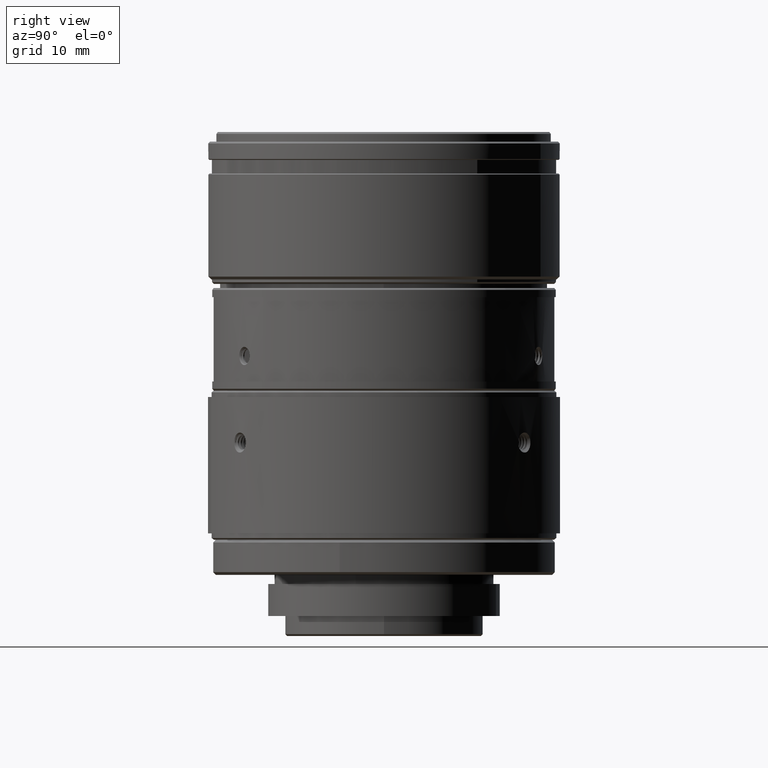
[diagram: clean part render]
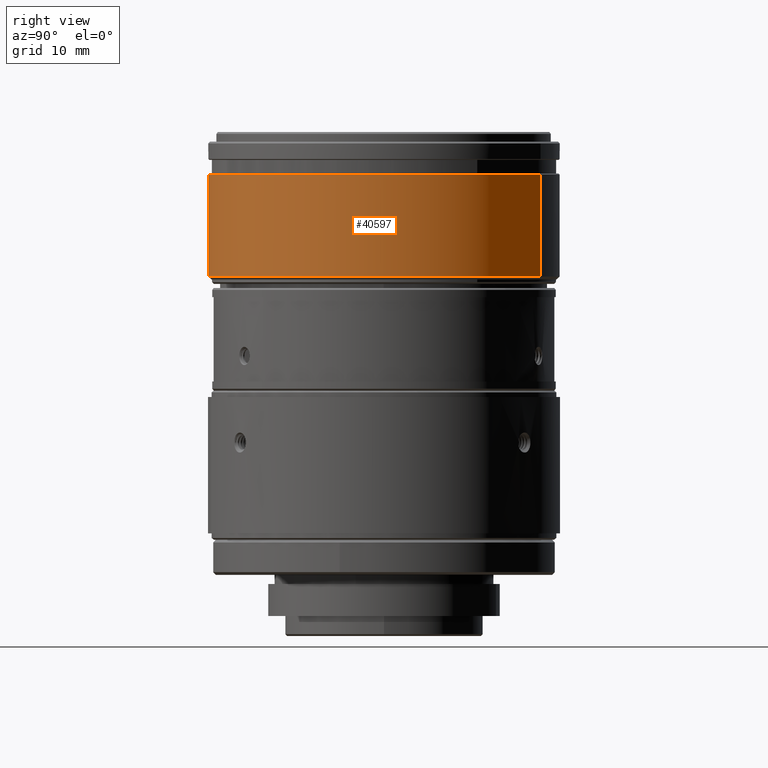
[diagram: same view with one face highlighted and labeled with its STEP entity id]
A machine part, right view. The second image highlights one B-rep face of the part: STEP entity #40597.
In plain terms, the highlighted cylindrical surface (partial cylindrical patch) has radius 19.3 mm, axis along (0, 0, 1).
Its self-contained STEP definition (entity closure, byte-faithful):
#926 = EDGE_CURVE ( 'NONE', #28683, #25272, #21875, .T. ) ;
#1331 = CARTESIAN_POINT ( 'NONE',  ( 11.17703901059508276, -15.70650292290311967, 42.16000000000000369 ) ) ;
#1519 = CYLINDRICAL_SURFACE ( 'NONE', #32688, 19.29999999999999716 ) ;
#1609 = CARTESIAN_POINT ( 'NONE',  ( 8.861353421802059316, 17.20298339624576656, 42.16000000000000369 ) ) ;
#3872 = VECTOR ( 'NONE', #29509, 1000.000000000000000 ) ;
#5086 = ORIENTED_EDGE ( 'NONE', *, *, #43564, .T. ) ;
#5505 = CARTESIAN_POINT ( 'NONE',  ( 0.02438686004500230028, 0.04495256557037800860, 30.96000000000000085 ) ) ;
#5933 = DIRECTION ( 'NONE',  ( 0.000000000000000000, 0.000000000000000000, -1.000000000000000000 ) ) ;
#6061 = CARTESIAN_POINT ( 'NONE',  ( 8.861353421801828389, 17.20298339624531536, 29.06500000000000128 ) ) ;
#7642 = CARTESIAN_POINT ( 'NONE',  ( 0.02438686004500230028, 0.04495256557037800860, 29.06500000000000128 ) ) ;
#7831 = CARTESIAN_POINT ( 'NONE',  ( -8.812579701711602098, -17.11307826510411090, 42.16000000000000369 ) ) ;
#10379 = CARTESIAN_POINT ( 'NONE',  ( -8.812579701711831248, -17.11307826510455854, 30.96000000000000085 ) ) ;
#10475 = CARTESIAN_POINT ( 'NONE',  ( 0.02438686004500230028, 0.04495256557037800860, 30.96000000000000085 ) ) ;
#10704 = DIRECTION ( 'NONE',  ( 0.000000000000000000, 0.000000000000000000, 1.000000000000000000 ) ) ;
#10862 = ORIENTED_EDGE ( 'NONE', *, *, #926, .T. ) ;
#12737 = VERTEX_POINT ( 'NONE', #1609 ) ;
#15539 = ORIENTED_EDGE ( 'NONE', *, *, #18943, .T. ) ;
#15706 = AXIS2_PLACEMENT_3D ( 'NONE', #5505, #19900, #26228 ) ;
#16051 = CARTESIAN_POINT ( 'NONE',  ( 8.861353421801830166, 17.20298339624531891, 30.96000000000000085 ) ) ;
#16394 = ORIENTED_EDGE ( 'NONE', *, *, #20152, .F. ) ;
#16676 = CIRCLE ( 'NONE', #33253, 19.30000000000000782 ) ;
#18943 = EDGE_CURVE ( 'NONE', #19371, #31689, #16676, .T. ) ;
#19371 = VERTEX_POINT ( 'NONE', #1331 ) ;
#19900 = DIRECTION ( 'NONE',  ( 0.000000000000000000, 0.000000000000000000, 1.000000000000000000 ) ) ;
#20152 = EDGE_CURVE ( 'NONE', #28683, #31689, #44286, .T. ) ;
#20420 = DIRECTION ( 'NONE',  ( -0.5778576243835047421, 0.8161375900801606242, 0.000000000000000000 ) ) ;
#21875 = CIRCLE ( 'NONE', #37694, 19.30000000000000782 ) ;
#22721 = CARTESIAN_POINT ( 'NONE',  ( 11.17703901033548775, -15.70650292253726654, 30.96000000000000085 ) ) ;
#22909 = ORIENTED_EDGE ( 'NONE', *, *, #40184, .T. ) ;
#23324 = DIRECTION ( 'NONE',  ( 0.000000000000000000, 0.000000000000000000, 1.000000000000000000 ) ) ;
#25272 = VERTEX_POINT ( 'NONE', #22721 ) ;
#26228 = DIRECTION ( 'NONE',  ( 0.5778576243835047421, -0.8161375900801606242, 0.000000000000000000 ) ) ;
#27404 = ORIENTED_EDGE ( 'NONE', *, *, #34021, .T. ) ;
#27881 = DIRECTION ( 'NONE',  ( 0.000000000000000000, 0.000000000000000000, -1.000000000000000000 ) ) ;
#28683 = VERTEX_POINT ( 'NONE', #10379 ) ;
#29509 = DIRECTION ( 'NONE',  ( 0.000000000000000000, 0.000000000000000000, 1.000000000000000000 ) ) ;
#30318 = CARTESIAN_POINT ( 'NONE',  ( -8.812579701711827695, -17.11307826510455499, 29.06500000000000128 ) ) ;
#31215 = CIRCLE ( 'NONE', #35562, 19.30000000000000782 ) ;
#31267 = EDGE_LOOP ( 'NONE', ( #16394, #10862, #27404, #5086, #22909, #15539 ) ) ;
#31528 = DIRECTION ( 'NONE',  ( 0.4578739151169340937, 0.8890171414857480636, 0.000000000000000000 ) ) ;
#31689 = VERTEX_POINT ( 'NONE', #7831 ) ;
#32688 = AXIS2_PLACEMENT_3D ( 'NONE', #7642, #41875, #31528 ) ;
#33253 = AXIS2_PLACEMENT_3D ( 'NONE', #36362, #5933, #39522 ) ;
#33558 = LINE ( 'NONE', #6061, #3872 ) ;
#34021 = EDGE_CURVE ( 'NONE', #25272, #35800, #37297, .T. ) ;
#35562 = AXIS2_PLACEMENT_3D ( 'NONE', #37791, #27881, #20420 ) ;
#35800 = VERTEX_POINT ( 'NONE', #16051 ) ;
#36362 = CARTESIAN_POINT ( 'NONE',  ( 0.02438686004524250051, 0.04495256557082009941, 42.16000000000000369 ) ) ;
#37297 = CIRCLE ( 'NONE', #15706, 19.30000000000000782 ) ;
#37363 = VECTOR ( 'NONE', #23324, 1000.000000000000000 ) ;
#37694 = AXIS2_PLACEMENT_3D ( 'NONE', #10475, #10704, #42231 ) ;
#37791 = CARTESIAN_POINT ( 'NONE',  ( 0.02438686004524250051, 0.04495256557082009941, 42.16000000000000369 ) ) ;
#39522 = DIRECTION ( 'NONE',  ( -0.5778576243835047421, 0.8161375900801606242, 0.000000000000000000 ) ) ;
#40184 = EDGE_CURVE ( 'NONE', #12737, #19371, #31215, .T. ) ;
#40597 = ADVANCED_FACE ( 'NONE', ( #42096 ), #1519, .T. ) ;
#41875 = DIRECTION ( 'NONE',  ( 0.000000000000000000, 0.000000000000000000, 1.000000000000000000 ) ) ;
#42096 = FACE_OUTER_BOUND ( 'NONE', #31267, .T. ) ;
#42231 = DIRECTION ( 'NONE',  ( 0.5778576243835047421, -0.8161375900801606242, 0.000000000000000000 ) ) ;
#43564 = EDGE_CURVE ( 'NONE', #35800, #12737, #33558, .T. ) ;
#44286 = LINE ( 'NONE', #30318, #37363 ) ;